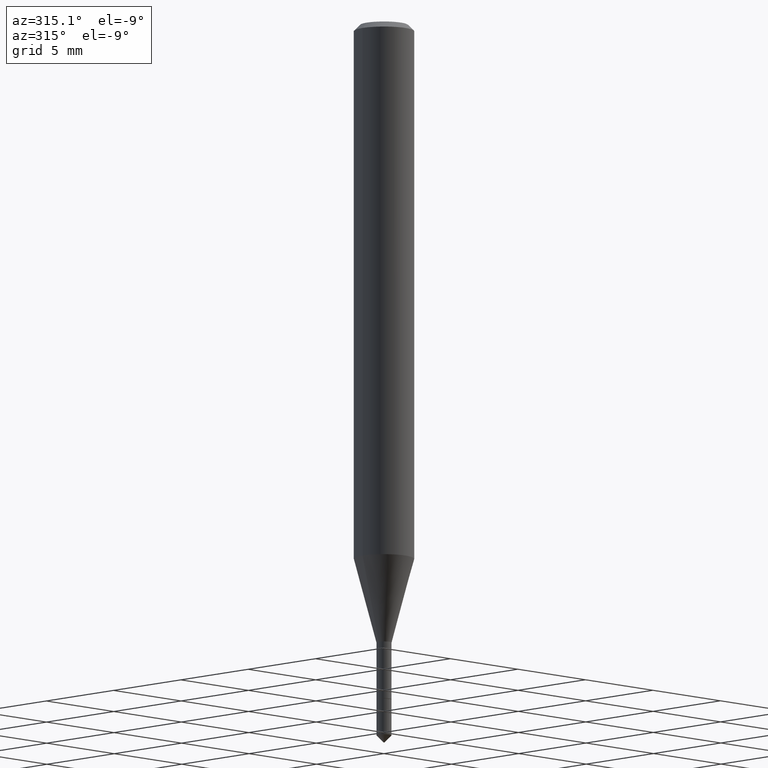
[diagram: clean part render]
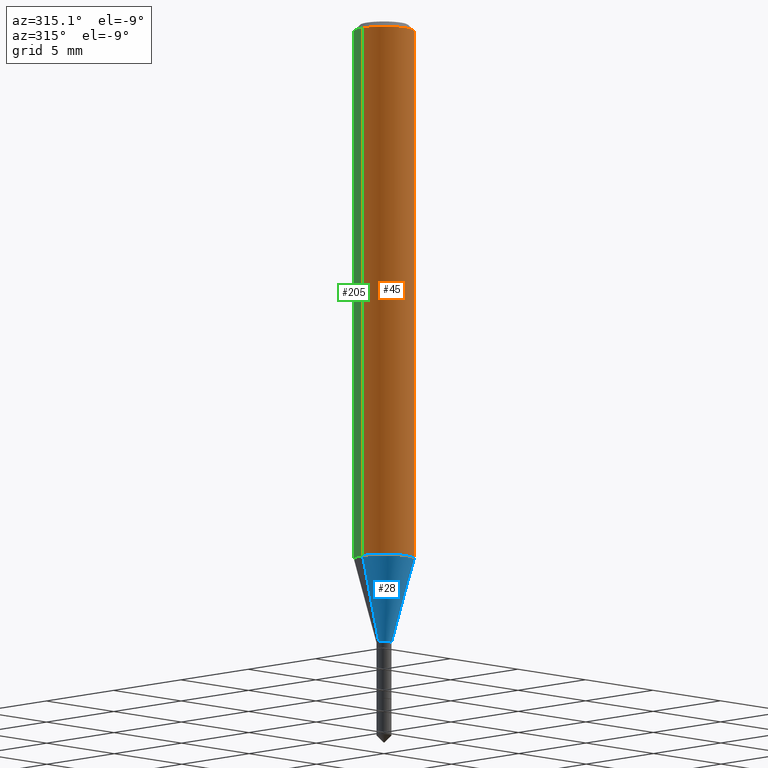
[diagram: same view with three faces highlighted in distinct colors, each labeled with its STEP entity id]
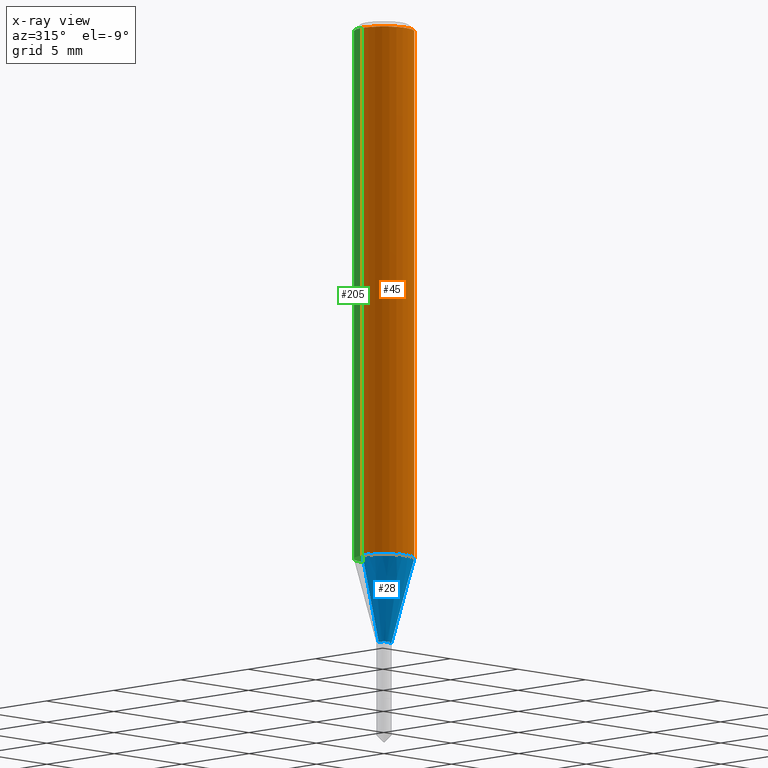
[diagram: x-ray of the same camera — body ghosted, the three highlighted faces saturated]
A machine part, auxiliary view with three faces highlighted in distinct colors.
The next image is the same camera in x-ray (body ghosted, the three faces saturated) — at least one of them is partly hidden behind the body in this view.
Their STEP definitions:

[orange] entity #45 — the highlighted cylindrical surface (edge-blend (fillet) strip) has radius 1.5875 mm, axis along (-0, 0, 1).
#15 = CARTESIAN_POINT ( 'NONE',  ( 0.06250000000000006939, -4.364351673553921624E-16, 3.047610484872463374E-30 ) ) ;
#24 = CARTESIAN_POINT ( 'NONE',  ( 0.000000000000000000, 0.000000000000000000, 0.000000000000000000 ) ) ;
#26 = CYLINDRICAL_SURFACE ( 'NONE', #395, 0.06250000000000006939 ) ;
#38 = ORIENTED_EDGE ( 'NONE', *, *, #189, .F. ) ;
#41 = AXIS2_PLACEMENT_3D ( 'NONE', #110, #415, #188 ) ;
#44 = CARTESIAN_POINT ( 'NONE',  ( -0.06250000000000015266, -3.450891514374587205E-15, -1.115566817125019927 ) ) ;
#45 = ADVANCED_FACE ( 'NONE', ( #52 ), #26, .T. ) ;
#52 = FACE_OUTER_BOUND ( 'NONE', #269, .T. ) ;
#66 = VERTEX_POINT ( 'NONE', #441 ) ;
#101 = ORIENTED_EDGE ( 'NONE', *, *, #321, .F. ) ;
#102 = CIRCLE ( 'NONE', #41, 0.06250000000000000000 ) ;
#103 = EDGE_CURVE ( 'NONE', #352, #463, #200, .T. ) ;
#110 = CARTESIAN_POINT ( 'NONE',  ( 3.056836007731441853E-31, -4.364351673553962300E-17, -0.01250000000000008570 ) ) ;
#145 = DIRECTION ( 'NONE',  ( 1.000000000000000000, -6.982962677686266711E-15, 4.876176775795935793E-29 ) ) ;
#181 = CARTESIAN_POINT ( 'NONE',  ( 2.728083852494474973E-29, -3.894980724224650610E-15, -1.115566817125019927 ) ) ;
#188 = DIRECTION ( 'NONE',  ( 1.000000000000000000, -6.982962677686266711E-15, 0.000000000000000000 ) ) ;
#189 = EDGE_CURVE ( 'NONE', #396, #66, #102, .T. ) ;
#194 = ORIENTED_EDGE ( 'NONE', *, *, #383, .T. ) ;
#200 = CIRCLE ( 'NONE', #418, 0.06250000000000013878 ) ;
#238 = CARTESIAN_POINT ( 'NONE',  ( 0.06250000000000015266, -4.331415891580043857E-15, -1.115566817125019927 ) ) ;
#255 = ORIENTED_EDGE ( 'NONE', *, *, #103, .T. ) ;
#269 = EDGE_LOOP ( 'NONE', ( #101, #255, #194, #38 ) ) ;
#273 = VECTOR ( 'NONE', #379, 39.37007874015748143 ) ;
#277 = DIRECTION ( 'NONE',  ( -2.445468806185136877E-29, 3.491481338843145188E-15, 1.000000000000000000 ) ) ;
#299 = CARTESIAN_POINT ( 'NONE',  ( -0.06250000000000006939, 4.440892098500631092E-16, -3.074334431409319267E-30 ) ) ;
#316 = DIRECTION ( 'NONE',  ( 1.000000000000000000, -6.982962677686270655E-15, 0.000000000000000000 ) ) ;
#318 = VECTOR ( 'NONE', #277, 39.37007874015748143 ) ;
#321 = EDGE_CURVE ( 'NONE', #352, #396, #413, .T. ) ;
#352 = VERTEX_POINT ( 'NONE', #44 ) ;
#353 = LINE ( 'NONE', #15, #318 ) ;
#379 = DIRECTION ( 'NONE',  ( -2.445468806185136877E-29, 3.491481338843145188E-15, 1.000000000000000000 ) ) ;
#383 = EDGE_CURVE ( 'NONE', #463, #66, #353, .T. ) ;
#395 = AXIS2_PLACEMENT_3D ( 'NONE', #24, #470, #145 ) ;
#396 = VERTEX_POINT ( 'NONE', #423 ) ;
#413 = LINE ( 'NONE', #299, #273 ) ;
#415 = DIRECTION ( 'NONE',  ( -2.445468806185136597E-29, 3.491481338843145583E-15, 1.000000000000000000 ) ) ;
#418 = AXIS2_PLACEMENT_3D ( 'NONE', #181, #478, #316 ) ;
#423 = CARTESIAN_POINT ( 'NONE',  ( -0.06250000000000000000, -1.525222910630031483E-15, -0.01250000000000008570 ) ) ;
#441 = CARTESIAN_POINT ( 'NONE',  ( 0.06250000000000000000, -4.800786840909313294E-16, -0.01250000000000008570 ) ) ;
#463 = VERTEX_POINT ( 'NONE', #238 ) ;
#470 = DIRECTION ( 'NONE',  ( -2.445468806185136597E-29, 3.491481338843145583E-15, 1.000000000000000000 ) ) ;
#478 = DIRECTION ( 'NONE',  ( -2.445468806185136597E-29, 3.491481338843145583E-15, 1.000000000000000000 ) ) ;

[blue] entity #28 — the highlighted conical surface has half-angle 15 deg.
#2 = ORIENTED_EDGE ( 'NONE', *, *, #175, .T. ) ;
#11 = DIRECTION ( 'NONE',  ( -0.2588190451025212391, 5.211531920934549464E-15, 0.9659258262890679791 ) ) ;
#16 = AXIS2_PLACEMENT_3D ( 'NONE', #174, #284, #397 ) ;
#22 = FACE_OUTER_BOUND ( 'NONE', #179, .T. ) ;
#28 = ADVANCED_FACE ( 'NONE', ( #22 ), #373, .T. ) ;
#36 = DIRECTION ( 'NONE',  ( 1.000000000000000000, -6.982962677686290376E-15, 0.000000000000000000 ) ) ;
#44 = CARTESIAN_POINT ( 'NONE',  ( -0.06250000000000015266, -3.450891514374587205E-15, -1.115566817125019927 ) ) ;
#103 = EDGE_CURVE ( 'NONE', #352, #463, #200, .T. ) ;
#106 = CARTESIAN_POINT ( 'NONE',  ( 0.01559999999999998367, -4.615040033682871428E-15, -1.290600000000000414 ) ) ;
#118 = EDGE_CURVE ( 'NONE', #432, #463, #472, .T. ) ;
#137 = DIRECTION ( 'NONE',  ( 0.2588190451025212391, 1.565188264969622362E-15, 0.9659258262890679791 ) ) ;
#158 = VERTEX_POINT ( 'NONE', #293 ) ;
#174 = CARTESIAN_POINT ( 'NONE',  ( 3.156122041262538513E-29, -4.506105815910965661E-15, -1.290600000000000414 ) ) ;
#175 = EDGE_CURVE ( 'NONE', #158, #432, #473, .T. ) ;
#179 = EDGE_LOOP ( 'NONE', ( #410, #2, #197, #253 ) ) ;
#181 = CARTESIAN_POINT ( 'NONE',  ( 2.728083852494474973E-29, -3.894980724224650610E-15, -1.115566817125019927 ) ) ;
#185 = AXIS2_PLACEMENT_3D ( 'NONE', #447, #487, #36 ) ;
#197 = ORIENTED_EDGE ( 'NONE', *, *, #118, .T. ) ;
#200 = CIRCLE ( 'NONE', #418, 0.06250000000000013878 ) ;
#238 = CARTESIAN_POINT ( 'NONE',  ( 0.06250000000000015266, -4.331415891580043857E-15, -1.115566817125019927 ) ) ;
#247 = VECTOR ( 'NONE', #137, 39.37007874015748854 ) ;
#253 = ORIENTED_EDGE ( 'NONE', *, *, #103, .F. ) ;
#284 = DIRECTION ( 'NONE',  ( -2.445468806185136597E-29, 3.491481338843145583E-15, 1.000000000000000000 ) ) ;
#293 = CARTESIAN_POINT ( 'NONE',  ( -0.01559999999999998367, -4.602829714726614675E-15, -1.290600000000000414 ) ) ;
#310 = CARTESIAN_POINT ( 'NONE',  ( -0.01559999999999998367, -4.395261149132390407E-15, -1.290600000000000414 ) ) ;
#316 = DIRECTION ( 'NONE',  ( 1.000000000000000000, -6.982962677686270655E-15, 0.000000000000000000 ) ) ;
#345 = LINE ( 'NONE', #310, #355 ) ;
#348 = CARTESIAN_POINT ( 'NONE',  ( 0.01559999999999998367, -4.615040033682871428E-15, -1.290600000000000414 ) ) ;
#352 = VERTEX_POINT ( 'NONE', #44 ) ;
#355 = VECTOR ( 'NONE', #11, 39.37007874015748854 ) ;
#373 = CONICAL_SURFACE ( 'NONE', #16, 0.01559999999999998367, 0.2617993877991499629 ) ;
#397 = DIRECTION ( 'NONE',  ( 1.000000000000000000, -6.982962677686290376E-15, 0.000000000000000000 ) ) ;
#402 = EDGE_CURVE ( 'NONE', #158, #352, #345, .T. ) ;
#410 = ORIENTED_EDGE ( 'NONE', *, *, #402, .F. ) ;
#418 = AXIS2_PLACEMENT_3D ( 'NONE', #181, #478, #316 ) ;
#432 = VERTEX_POINT ( 'NONE', #348 ) ;
#447 = CARTESIAN_POINT ( 'NONE',  ( 3.156122041262538513E-29, -4.506105815910965661E-15, -1.290600000000000414 ) ) ;
#463 = VERTEX_POINT ( 'NONE', #238 ) ;
#472 = LINE ( 'NONE', #106, #247 ) ;
#473 = CIRCLE ( 'NONE', #185, 0.01559999999999998367 ) ;
#478 = DIRECTION ( 'NONE',  ( -2.445468806185136597E-29, 3.491481338843145583E-15, 1.000000000000000000 ) ) ;
#487 = DIRECTION ( 'NONE',  ( -2.445468806185136597E-29, 3.491481338843145583E-15, 1.000000000000000000 ) ) ;

[green] entity #205 — the highlighted cylindrical surface (edge-blend (fillet) strip) has radius 1.5875 mm, axis along (-0, 0, 1).
#1 = CARTESIAN_POINT ( 'NONE',  ( 3.056836007731441853E-31, -4.364351673553962300E-17, -0.01250000000000008570 ) ) ;
#13 = DIRECTION ( 'NONE',  ( -2.445468806185136597E-29, 3.491481338843145583E-15, 1.000000000000000000 ) ) ;
#15 = CARTESIAN_POINT ( 'NONE',  ( 0.06250000000000006939, -4.364351673553921624E-16, 3.047610484872463374E-30 ) ) ;
#44 = CARTESIAN_POINT ( 'NONE',  ( -0.06250000000000015266, -3.450891514374587205E-15, -1.115566817125019927 ) ) ;
#63 = DIRECTION ( 'NONE',  ( -2.445468806185136597E-29, 3.491481338843145583E-15, 1.000000000000000000 ) ) ;
#66 = VERTEX_POINT ( 'NONE', #441 ) ;
#76 = AXIS2_PLACEMENT_3D ( 'NONE', #80, #13, #235 ) ;
#80 = CARTESIAN_POINT ( 'NONE',  ( 2.728083852494474973E-29, -3.894980724224650610E-15, -1.115566817125019927 ) ) ;
#108 = DIRECTION ( 'NONE',  ( -2.445468806185136597E-29, 3.491481338843145583E-15, 1.000000000000000000 ) ) ;
#116 = CARTESIAN_POINT ( 'NONE',  ( 0.000000000000000000, 0.000000000000000000, 0.000000000000000000 ) ) ;
#148 = EDGE_CURVE ( 'NONE', #66, #396, #222, .T. ) ;
#149 = DIRECTION ( 'NONE',  ( 1.000000000000000000, -6.982962677686266711E-15, 0.000000000000000000 ) ) ;
#163 = EDGE_LOOP ( 'NONE', ( #414, #427, #347, #325 ) ) ;
#205 = ADVANCED_FACE ( 'NONE', ( #256 ), #332, .T. ) ;
#222 = CIRCLE ( 'NONE', #381, 0.06250000000000000000 ) ;
#235 = DIRECTION ( 'NONE',  ( 1.000000000000000000, -6.982962677686270655E-15, 0.000000000000000000 ) ) ;
#238 = CARTESIAN_POINT ( 'NONE',  ( 0.06250000000000015266, -4.331415891580043857E-15, -1.115566817125019927 ) ) ;
#239 = AXIS2_PLACEMENT_3D ( 'NONE', #116, #108, #330 ) ;
#240 = CIRCLE ( 'NONE', #76, 0.06250000000000013878 ) ;
#256 = FACE_OUTER_BOUND ( 'NONE', #163, .T. ) ;
#273 = VECTOR ( 'NONE', #379, 39.37007874015748143 ) ;
#277 = DIRECTION ( 'NONE',  ( -2.445468806185136877E-29, 3.491481338843145188E-15, 1.000000000000000000 ) ) ;
#299 = CARTESIAN_POINT ( 'NONE',  ( -0.06250000000000006939, 4.440892098500631092E-16, -3.074334431409319267E-30 ) ) ;
#318 = VECTOR ( 'NONE', #277, 39.37007874015748143 ) ;
#321 = EDGE_CURVE ( 'NONE', #352, #396, #413, .T. ) ;
#325 = ORIENTED_EDGE ( 'NONE', *, *, #383, .F. ) ;
#330 = DIRECTION ( 'NONE',  ( 1.000000000000000000, -6.982962677686266711E-15, 4.876176775795935793E-29 ) ) ;
#332 = CYLINDRICAL_SURFACE ( 'NONE', #239, 0.06250000000000006939 ) ;
#346 = EDGE_CURVE ( 'NONE', #463, #352, #240, .T. ) ;
#347 = ORIENTED_EDGE ( 'NONE', *, *, #148, .F. ) ;
#352 = VERTEX_POINT ( 'NONE', #44 ) ;
#353 = LINE ( 'NONE', #15, #318 ) ;
#379 = DIRECTION ( 'NONE',  ( -2.445468806185136877E-29, 3.491481338843145188E-15, 1.000000000000000000 ) ) ;
#381 = AXIS2_PLACEMENT_3D ( 'NONE', #1, #63, #149 ) ;
#383 = EDGE_CURVE ( 'NONE', #463, #66, #353, .T. ) ;
#396 = VERTEX_POINT ( 'NONE', #423 ) ;
#413 = LINE ( 'NONE', #299, #273 ) ;
#414 = ORIENTED_EDGE ( 'NONE', *, *, #346, .T. ) ;
#423 = CARTESIAN_POINT ( 'NONE',  ( -0.06250000000000000000, -1.525222910630031483E-15, -0.01250000000000008570 ) ) ;
#427 = ORIENTED_EDGE ( 'NONE', *, *, #321, .T. ) ;
#441 = CARTESIAN_POINT ( 'NONE',  ( 0.06250000000000000000, -4.800786840909313294E-16, -0.01250000000000008570 ) ) ;
#463 = VERTEX_POINT ( 'NONE', #238 ) ;